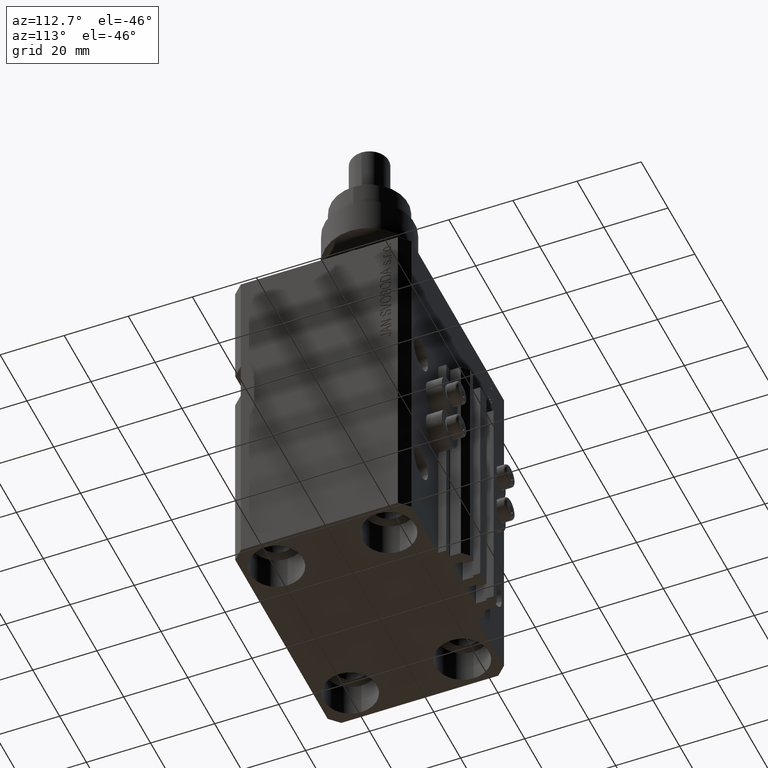
[diagram: clean part render]
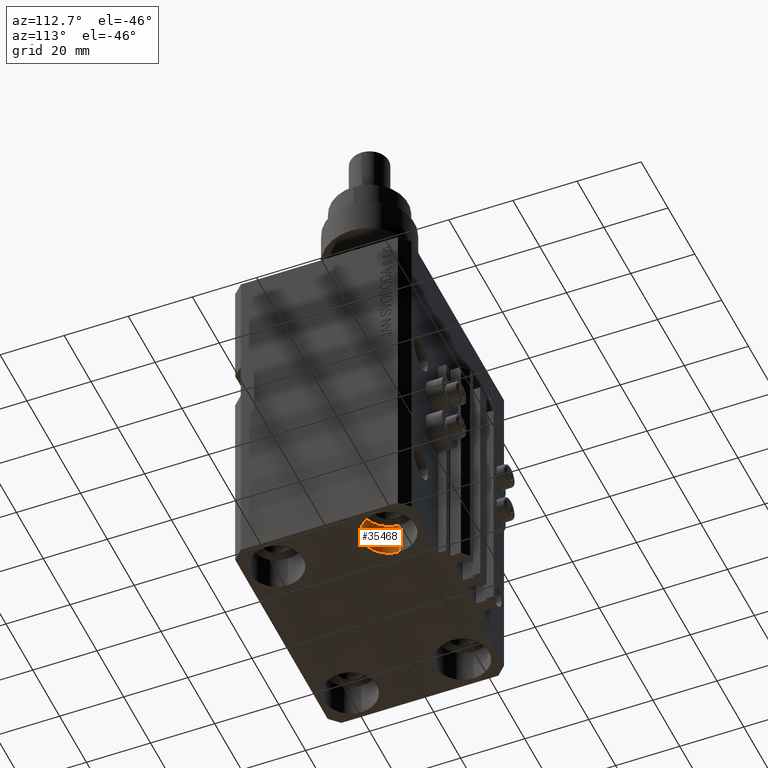
[diagram: same view with one face highlighted and labeled with its STEP entity id]
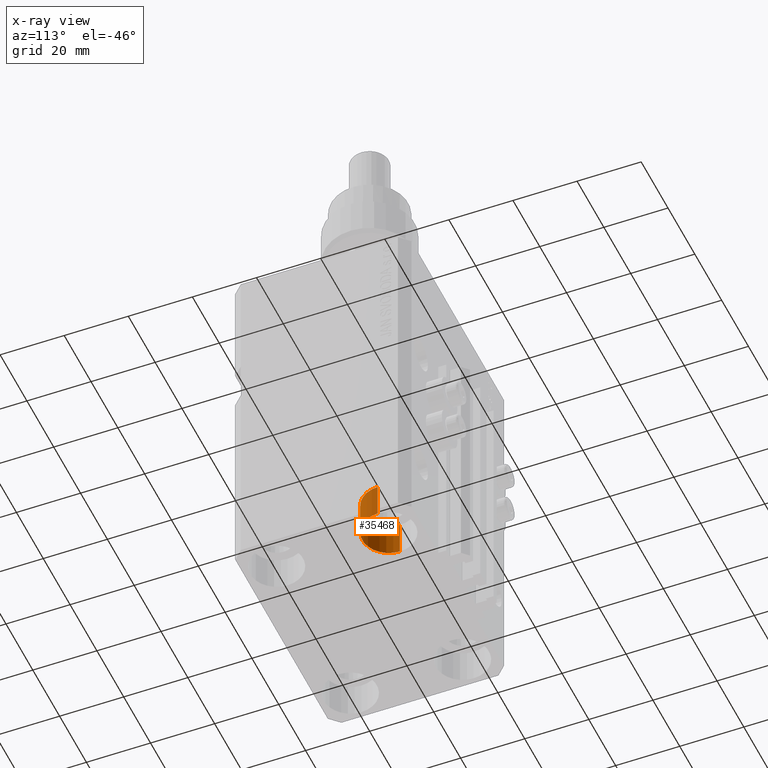
[diagram: x-ray of the same camera — body ghosted, the highlighted face saturated]
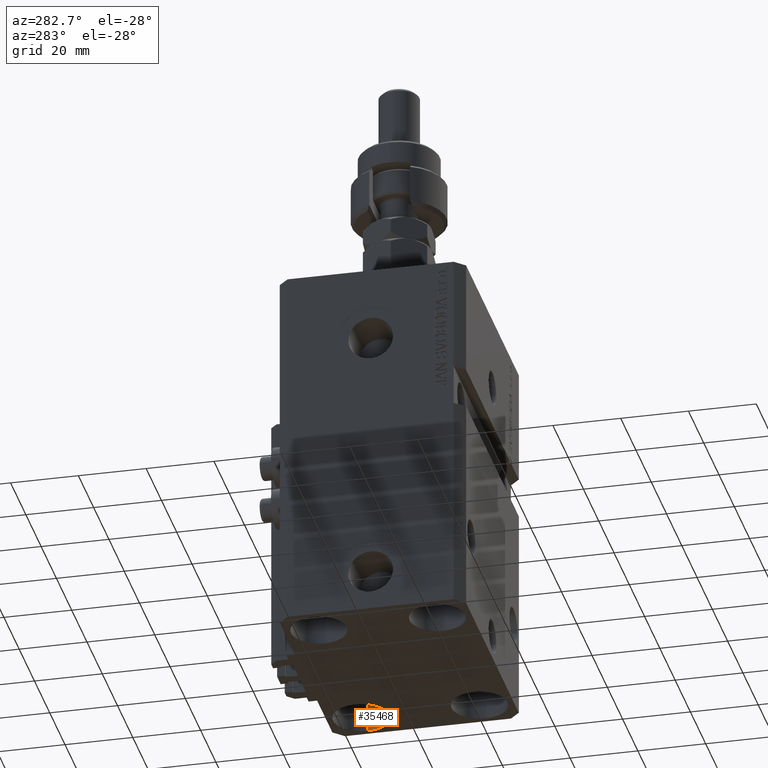
[diagram: same view with one face highlighted and labeled with its STEP entity id]
A machine part, auxiliary view. The second image highlights one B-rep face of the part: STEP entity #35468.
The next image is the same camera in x-ray: the body ghosted, the highlighted face saturated — about 0% of this face is hidden behind the body in this view.
A second angle (auxiliary view) of the same face is appended — the face is thin or edge-on in the first view.
In plain terms, the highlighted cylindrical surface (edge-blend (fillet) strip) has radius 8.25 mm, axis along (-0, -0, -1).
Its self-contained STEP definition (entity closure, byte-faithful):
#672 = EDGE_LOOP ( 'NONE', ( #10594, #22394, #1282, #42104 ) ) ;
#1282 = ORIENTED_EDGE ( 'NONE', *, *, #17334, .F. ) ;
#2850 = DIRECTION ( 'NONE',  ( -0.000000000000000000, -0.000000000000000000, 1.000000000000000000 ) ) ;
#5108 = FACE_OUTER_BOUND ( 'NONE', #672, .T. ) ;
#5757 = LINE ( 'NONE', #20984, #7856 ) ;
#7856 = VECTOR ( 'NONE', #36448, 1000.000000000000000 ) ;
#9151 = EDGE_CURVE ( 'NONE', #27257, #49371, #42284, .T. ) ;
#9420 = DIRECTION ( 'NONE',  ( -1.000000000000000000, 0.000000000000000000, 0.000000000000000000 ) ) ;
#9670 = CARTESIAN_POINT ( 'NONE',  ( 27.49999999999999645, 17.50000000000001066, -99.00000000000000000 ) ) ;
#10594 = ORIENTED_EDGE ( 'NONE', *, *, #22907, .T. ) ;
#14629 = CARTESIAN_POINT ( 'NONE',  ( 19.25000000000000000, 17.50000000000001066, -99.00000000000000000 ) ) ;
#17334 = EDGE_CURVE ( 'NONE', #45841, #49371, #41801, .T. ) ;
#19462 = EDGE_CURVE ( 'NONE', #20520, #45841, #5757, .T. ) ;
#20520 = VERTEX_POINT ( 'NONE', #14629 ) ;
#20984 = CARTESIAN_POINT ( 'NONE',  ( 19.25000000000000000, 17.50000000000001066, -99.00000000000000000 ) ) ;
#21248 = DIRECTION ( 'NONE',  ( 1.000000000000000000, 0.000000000000000000, 0.000000000000000000 ) ) ;
#21399 = VECTOR ( 'NONE', #34652, 1000.000000000000000 ) ;
#22394 = ORIENTED_EDGE ( 'NONE', *, *, #9151, .T. ) ;
#22907 = EDGE_CURVE ( 'NONE', #20520, #27257, #40421, .T. ) ;
#23637 = DIRECTION ( 'NONE',  ( 1.000000000000000000, 0.000000000000000000, 0.000000000000000000 ) ) ;
#27257 = VERTEX_POINT ( 'NONE', #45869 ) ;
#27381 = AXIS2_PLACEMENT_3D ( 'NONE', #9670, #36558, #9420 ) ;
#34652 = DIRECTION ( 'NONE',  ( -0.000000000000000000, -0.000000000000000000, -1.000000000000000000 ) ) ;
#35468 = ADVANCED_FACE ( 'NONE', ( #5108 ), #36307, .F. ) ;
#36307 = CYLINDRICAL_SURFACE ( 'NONE', #27381, 8.249999999999996447 ) ;
#36448 = DIRECTION ( 'NONE',  ( -0.000000000000000000, -0.000000000000000000, -1.000000000000000000 ) ) ;
#36558 = DIRECTION ( 'NONE',  ( -0.000000000000000000, -0.000000000000000000, -1.000000000000000000 ) ) ;
#37193 = DIRECTION ( 'NONE',  ( -0.000000000000000000, -0.000000000000000000, 1.000000000000000000 ) ) ;
#37589 = CARTESIAN_POINT ( 'NONE',  ( 27.49999999999999645, 17.50000000000001066, -99.00000000000000000 ) ) ;
#39559 = CARTESIAN_POINT ( 'NONE',  ( 19.25000000000000000, 17.50000000000001066, -110.0000000000000000 ) ) ;
#40421 = CIRCLE ( 'NONE', #50139, 8.249999999999992895 ) ;
#41801 = CIRCLE ( 'NONE', #44226, 8.249999999999992895 ) ;
#42104 = ORIENTED_EDGE ( 'NONE', *, *, #19462, .F. ) ;
#42284 = LINE ( 'NONE', #42526, #21399 ) ;
#42526 = CARTESIAN_POINT ( 'NONE',  ( 35.74999999999999289, 17.50000000000001066, -99.00000000000000000 ) ) ;
#44226 = AXIS2_PLACEMENT_3D ( 'NONE', #48127, #37193, #21248 ) ;
#45841 = VERTEX_POINT ( 'NONE', #39559 ) ;
#45869 = CARTESIAN_POINT ( 'NONE',  ( 35.74999999999999289, 17.50000000000001066, -99.00000000000000000 ) ) ;
#46879 = CARTESIAN_POINT ( 'NONE',  ( 35.74999999999999289, 17.50000000000001066, -110.0000000000000000 ) ) ;
#48127 = CARTESIAN_POINT ( 'NONE',  ( 27.49999999999999645, 17.50000000000001066, -110.0000000000000000 ) ) ;
#49371 = VERTEX_POINT ( 'NONE', #46879 ) ;
#50139 = AXIS2_PLACEMENT_3D ( 'NONE', #37589, #2850, #23637 ) ;